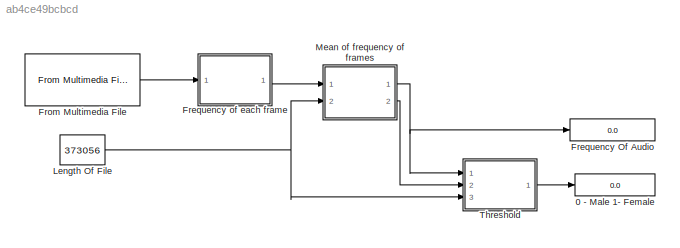
MODEL slx_ab4ce49bcbcd
KIND model
CONFIG AbsTol = auto
CONFIG EnableMultiTasking = off
CONFIG FixedStep = auto
CONFIG MaxStep = auto
CONFIG MinStep = auto
CONFIG RelTol = 1e-3
CONFIG SampleTimeConstraint = Unconstrained
CONFIG Solver = VariableStepAuto
CONFIG SolverName = VariableStepAuto
CONFIG StartTime = 0.0
CONFIG StopTime = 10.0
BLOCK [Display] 0 - Male 1- Female
  Decimation = 1
  Ports = [1]
BLOCK [Display] Frequency Of Audio
  Decimation = 1
  Ports = [1]
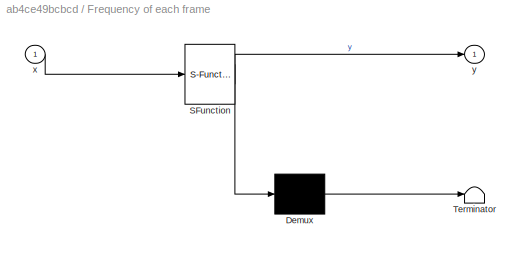
BLOCK [SubSystem] Frequency of each frame
  ErrorFcn = Stateflow.Translate.translate
  PermitHierarchicalResolution = ExplicitOnly
  Ports = [1, 1]
  RequestExecContextInheritance = off
  SFBlockType = MATLAB Function
  TreatAsAtomicUnit = on
  Variant = off
BLOCK [Demux] Frequency of each frame/ Demux 
  Outputs = 1
  Ports = [1, 1]
BLOCK [S-Function] Frequency of each frame/ SFunction 
  EnableBusSupport = on
  FunctionName = sf_sfun
  PortCounts = [1 2]
  Ports = [1, 2]
  SFcnIsStateOwnerBlock = off
  SFunctionDeploymentMode = off
  Tag = Stateflow S-Function Male_female 2
BLOCK [Terminator] Frequency of each frame/ Terminator 
BLOCK [Inport] Frequency of each frame/x
  IconDisplay = Port number
BLOCK [Outport] Frequency of each frame/y
  IconDisplay = Port number
BLOCK [Reference] From Multimedia File  REF=dspvision/From Multimedia File
  Ports = [0, 1]
  SourceBlock = dspvision/From Multimedia File
  SourceProductBaseCode = VP
  SourceProductName = Computer Vision System Toolbox
  SourceType = From Multimedia File
BLOCK [Constant] Length Of File 
  Value = 373056
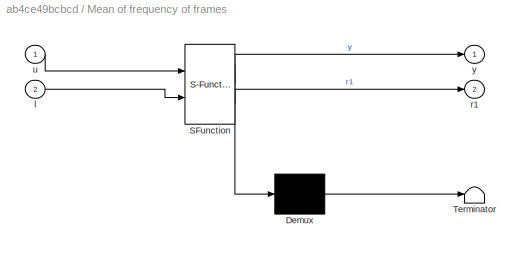
BLOCK [SubSystem] Mean of frequency of frames
  ErrorFcn = Stateflow.Translate.translate
  PermitHierarchicalResolution = ExplicitOnly
  Ports = [2, 2]
  RequestExecContextInheritance = off
  SFBlockType = MATLAB Function
  TreatAsAtomicUnit = on
  Variant = off
BLOCK [Demux] Mean of frequency of frames/ Demux 
  Outputs = 1
  Ports = [1, 1]
BLOCK [S-Function] Mean of frequency of frames/ SFunction 
  EnableBusSupport = on
  FunctionName = sf_sfun
  PortCounts = [2 3]
  Ports = [2, 3]
  SFcnIsStateOwnerBlock = off
  SFunctionDeploymentMode = off
  Tag = Stateflow S-Function Male_female 3
BLOCK [Terminator] Mean of frequency of frames/ Terminator 
BLOCK [Inport] Mean of frequency of frames/l
  IconDisplay = Port number
  Port = 2
BLOCK [Outport] Mean of frequency of frames/r1
  IconDisplay = Port number
  Port = 2
BLOCK [Inport] Mean of frequency of frames/u
  IconDisplay = Port number
BLOCK [Outport] Mean of frequency of frames/y
  IconDisplay = Port number
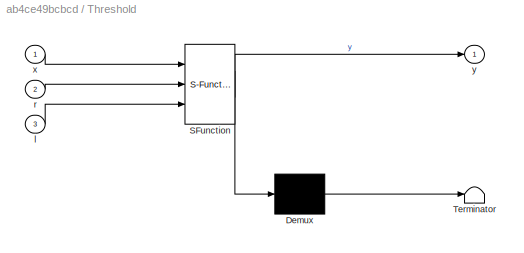
BLOCK [SubSystem] Threshold
  ErrorFcn = Stateflow.Translate.translate
  PermitHierarchicalResolution = ExplicitOnly
  Ports = [3, 1]
  RequestExecContextInheritance = off
  SFBlockType = MATLAB Function
  TreatAsAtomicUnit = on
  Variant = off
BLOCK [Demux] Threshold/ Demux 
  Outputs = 1
  Ports = [1, 1]
BLOCK [S-Function] Threshold/ SFunction 
  EnableBusSupport = on
  FunctionName = sf_sfun
  PortCounts = [3 2]
  Ports = [3, 2]
  SFcnIsStateOwnerBlock = off
  SFunctionDeploymentMode = off
  Tag = Stateflow S-Function Male_female 1
BLOCK [Terminator] Threshold/ Terminator 
BLOCK [Inport] Threshold/l
  IconDisplay = Port number
  Port = 3
BLOCK [Inport] Threshold/r
  IconDisplay = Port number
  Port = 2
BLOCK [Inport] Threshold/x
  IconDisplay = Port number
BLOCK [Outport] Threshold/y
  IconDisplay = Port number
LINE Frequency of each frame:1 -> Mean of frequency of frames:1
LINE From Multimedia File:1 -> Frequency of each frame:1
NET Length Of File :1 -> Mean of frequency of frames:2, Threshold:3
NET Mean of frequency of frames:1 -> Frequency Of Audio:1, Threshold:1
LINE Mean of frequency of frames:2 -> Threshold:2
LINE Threshold:1 -> 0 - Male 1- Female:1
note: NET lines group one-source signal fan-out (src -> all destinations, sorted); 1:1 wires keep LINE
CHART Threshold states=1 transitions=1
  STATE_LABEL 'eML_blk_kernel()'
  STATE_LABEL 'SCRIPT:\nfunction y = fcn(x,r,l)\ny=5;\nif r>l/3500\n    if x>160\n        y=1;\n    else\n        y=0;\n    end\nend\nend\n'
CHART Frequency of each frame states=1 transitions=1
  STATE_LABEL 'eML_blk_kernel()'
  STATE_LABEL "SCRIPT:\nfunction y = fcn(x)\nFs=44100;\ncoder.extrinsic('butter');\ncoder.extrinsic('filter');\n[b0,a0]=butter(2,325/(Fs/2));\nxin = abs(x);\nxin=filter(b0,a0,xin);\nxin = xin-mean(xin);\nx2=zeros(length(xin),1);\nx2(1:length(x)-1)=xin(2:length(x));\nzc=length(find((xin>0 & x2<0) | (xin<0 & x2>0)));\ny = 0.5*Fs*zc/length(x);\n"
CHART Mean of frequency 
of frames states=1 transitions=1
  STATE_LABEL 'eML_blk_kernel()'
  STATE_LABEL 'SCRIPT:\nfunction [y,r1] = fcn(u,l)\npersistent i\npersistent r\nif isempty(i)\n        i = 0;\nend\nif isempty(r)\n        r = 0;\nend\nj=l/3500;\ni= (u/j)+i;\nr=r+1;\nr1=r;\ny = i;\n'
